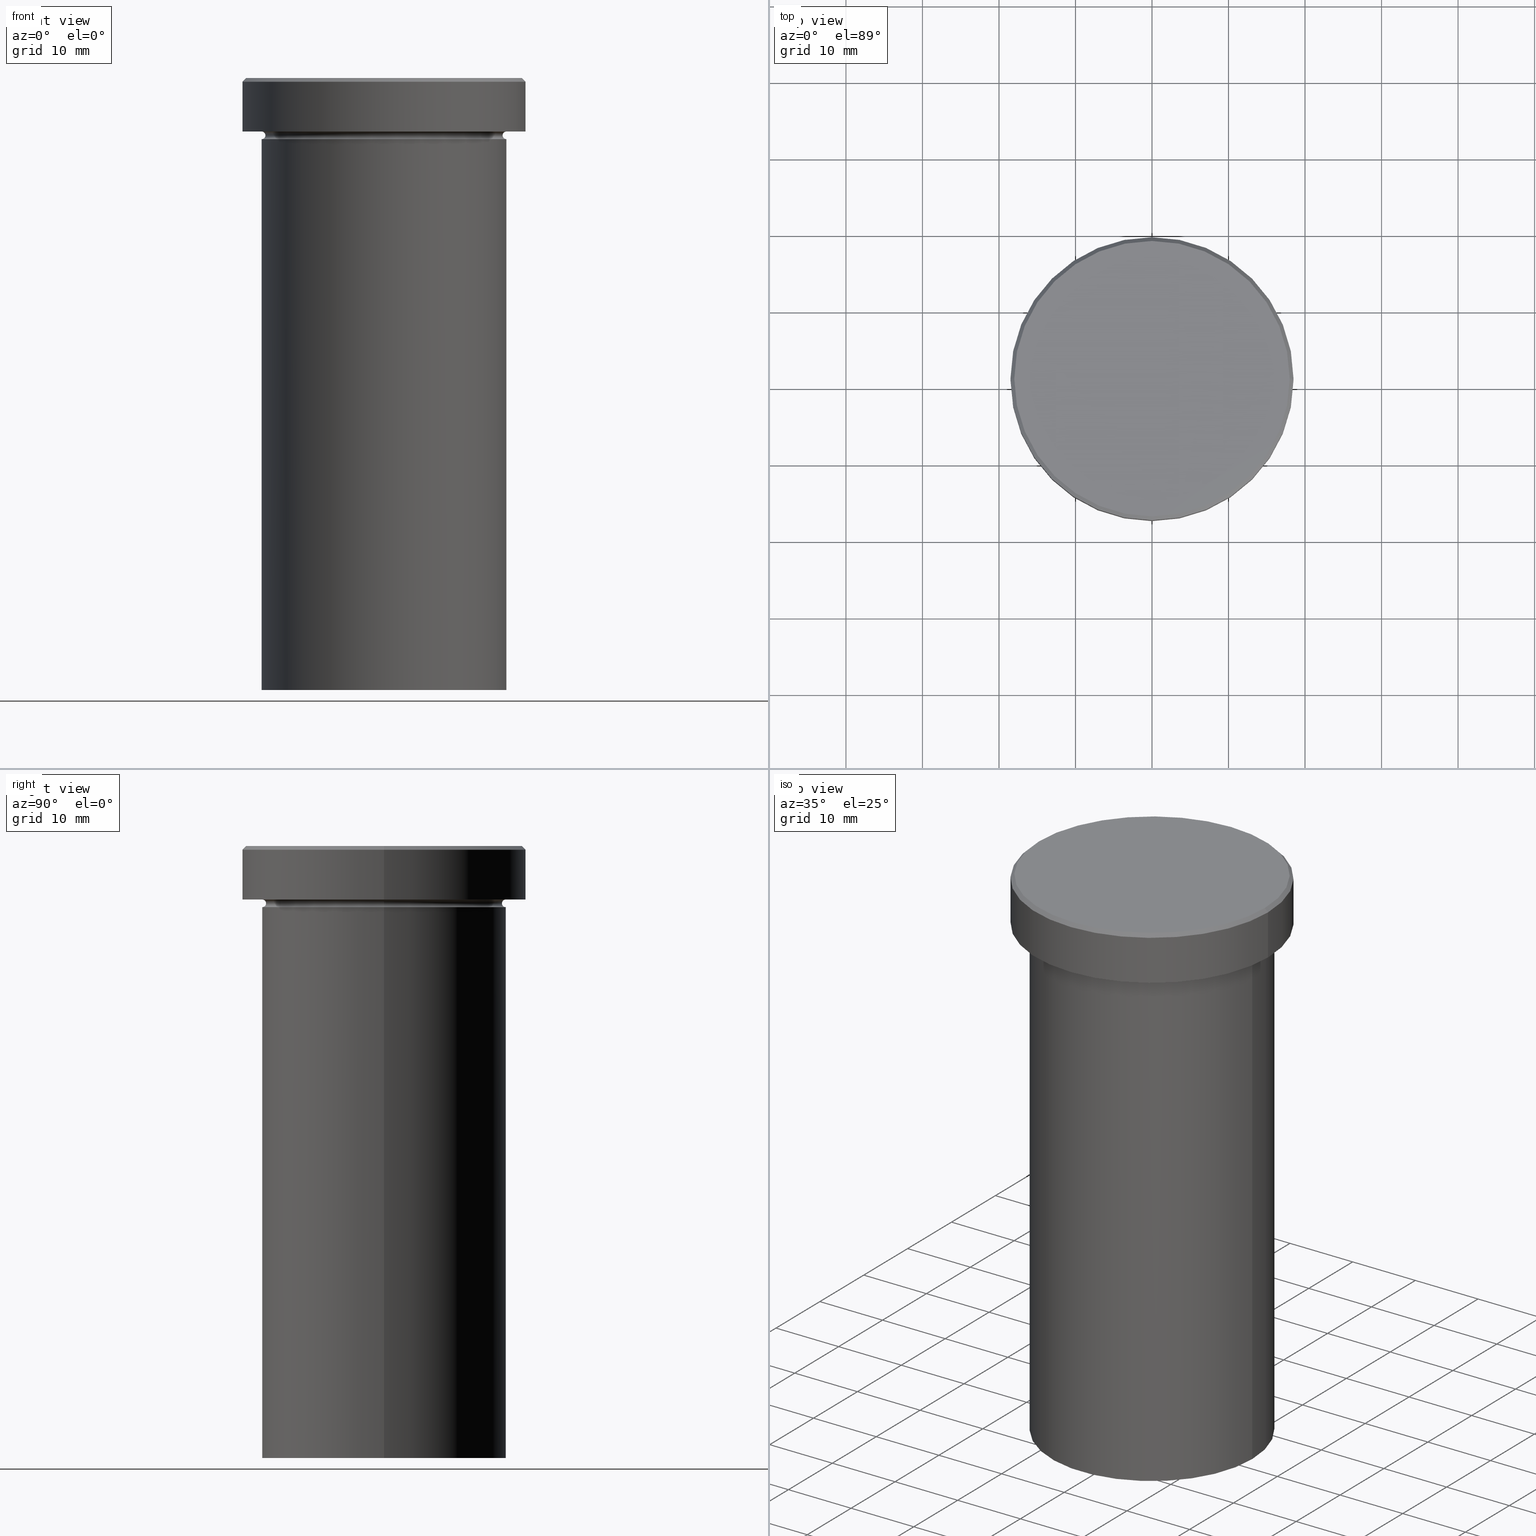
[diagram: canonical four-view strip — front | top / right | iso, engineering-drawing reading convention]
A machine part, canonical four-view strip (front | top / right | iso — engineering-drawing reading convention). The complete STEP part file that produces these views, byte-faithful:
ISO-10303-21;
HEADER;
FILE_DESCRIPTION (( 'STEP AP203' ),
    '1' );
FILE_NAME ('6285.STEP',
    '2024-01-02T19:14:12',
    ( '' ),
    ( '' ),
    'SwSTEP 2.0',
    'SolidWorks 2019',
    '' );
FILE_SCHEMA (( 'CONFIG_CONTROL_DESIGN' ));
ENDSEC;

DATA;
#1 = AXIS2_PLACEMENT_3D ( 'NONE', #48, #394, #180 ) ;
#2 = AXIS2_PLACEMENT_3D ( 'NONE', #370, #89, #249 ) ;
#3 = EDGE_LOOP ( 'NONE', ( #107, #36, #217, #155 ) ) ;
#4 = COORDINATED_UNIVERSAL_TIME_OFFSET ( 1, 0, .AHEAD. ) ;
#5 = CARTESIAN_POINT ( 'NONE',  ( 0.000000000000000000, 0.000000000000000000, -7.500000000000000000 ) ) ;
#6 = PERSON_AND_ORGANIZATION ( #95, #114 ) ;
#7 = DIRECTION ( 'NONE',  ( 1.000000000000000000, 0.000000000000000000, 0.000000000000000000 ) ) ;
#8 = EDGE_CURVE ( 'NONE', #279, #90, #46, .T. ) ;
#9 = CIRCLE ( 'NONE', #261, 0.5000000000000004441 ) ;
#10 = AXIS2_PLACEMENT_3D ( 'NONE', #66, #149, #244 ) ;
#11 = DIRECTION ( 'NONE',  ( 1.000000000000000000, 0.000000000000000000, 0.000000000000000000 ) ) ;
#12 = ADVANCED_FACE ( 'NONE', ( #43 ), #74, .T. ) ;
#13 = LINE ( 'NONE', #390, #153 ) ;
#14 = PLANE ( 'NONE',  #1 ) ;
#15 = CONICAL_SURFACE ( 'NONE', #241, 17.99999999999998934, 0.7853981633974380649 ) ;
#16 = CARTESIAN_POINT ( 'NONE',  ( 0.000000000000000000, 0.000000000000000000, -6.999999999999999112 ) ) ;
#17 = DIRECTION ( 'NONE',  ( 1.000000000000000000, 0.000000000000000000, 0.000000000000000000 ) ) ;
#18 = CARTESIAN_POINT ( 'NONE',  ( 0.000000000000000000, 0.000000000000000000, -6.999999999999999112 ) ) ;
#19 = CARTESIAN_POINT ( 'NONE',  ( 0.000000000000000000, 0.000000000000000000, -80.00000000000000000 ) ) ;
#20 = AXIS2_PLACEMENT_3D ( 'NONE', #221, #62, #188 ) ;
#21 = DIRECTION ( 'NONE',  ( -1.000000000000000000, 0.000000000000000000, 0.000000000000000000 ) ) ;
#22 = CARTESIAN_POINT ( 'NONE',  ( 16.00000000000000000, 0.000000000000000000, 0.000000000000000000 ) ) ;
#23 = ORIENTED_EDGE ( 'NONE', *, *, #229, .T. ) ;
#24 = EDGE_CURVE ( 'NONE', #26, #283, #271, .T. ) ;
#25 = DIRECTION ( 'NONE',  ( 0.000000000000000000, 0.000000000000000000, -1.000000000000000000 ) ) ;
#26 = VERTEX_POINT ( 'NONE', #200 ) ;
#27 = ADVANCED_FACE ( 'NONE', ( #77, #233 ), #224, .T. ) ;
#28 = CIRCLE ( 'NONE', #103, 16.00000000000000000 ) ;
#29 = TOROIDAL_SURFACE ( 'NONE', #10, 16.00000000000000000, 0.5000000000000000000 ) ;
#30 = CC_DESIGN_APPROVAL ( #123, ( #362 ) ) ;
#31 = DIRECTION ( 'NONE',  ( -0.000000000000000000, -0.000000000000000000, 1.000000000000000000 ) ) ;
#32 = ORIENTED_EDGE ( 'NONE', *, *, #50, .T. ) ;
#33 = APPROVAL ( #285, 'NEUR�EN�' ) ;
#34 = EDGE_LOOP ( 'NONE', ( #343, #405, #262, #67 ) ) ;
#35 = CALENDAR_DATE ( 2024, 2, 1 ) ;
#36 = ORIENTED_EDGE ( 'NONE', *, *, #125, .T. ) ;
#37 = APPLICATION_CONTEXT ( 'configuration controlled 3d designs of mechanical parts and assemblies' ) ;
#38 = AXIS2_PLACEMENT_3D ( 'NONE', #108, #354, #268 ) ;
#39 = CIRCLE ( 'NONE', #242, 15.50000000000000000 ) ;
#40 = APPLICATION_PROTOCOL_DEFINITION ( 'international standard', 'config_control_design', 1994, #37 ) ;
#41 = CARTESIAN_POINT ( 'NONE',  ( 0.000000000000000000, 0.000000000000000000, -80.00000000000000000 ) ) ;
#42 = APPLICATION_PROTOCOL_DEFINITION ( 'international standard', 'config_control_design', 1994, #225 ) ;
#43 = FACE_OUTER_BOUND ( 'NONE', #124, .T. ) ;
#44 =( NAMED_UNIT ( * ) PLANE_ANGLE_UNIT ( ) SI_UNIT ( $, .RADIAN. ) );
#45 = ORIENTED_EDGE ( 'NONE', *, *, #24, .F. ) ;
#46 = CIRCLE ( 'NONE', #168, 18.50000000000000000 ) ;
#47 = ORIENTED_EDGE ( 'NONE', *, *, #125, .F. ) ;
#48 = CARTESIAN_POINT ( 'NONE',  ( 0.000000000000000000, 0.000000000000000000, 0.000000000000000000 ) ) ;
#49 = CC_DESIGN_DATE_AND_TIME_ASSIGNMENT ( #289, #104, ( #130 ) ) ;
#50 = EDGE_CURVE ( 'NONE', #157, #59, #371, .T. ) ;
#51 = CARTESIAN_POINT ( 'NONE',  ( -15.50000000000000000, 1.928818708657081344E-15, -7.500000000000000000 ) ) ;
#52 = EDGE_CURVE ( 'NONE', #97, #381, #391, .T. ) ;
#53 = DIRECTION ( 'NONE',  ( -0.000000000000000000, -0.000000000000000000, 1.000000000000000000 ) ) ;
#54 = LOCAL_TIME ( 20, 14, 12.00000000000000000, #317 ) ;
#55 = PLANE ( 'NONE',  #308 ) ;
#56 = EDGE_CURVE ( 'NONE', #118, #245, #383, .T. ) ;
#57 = CARTESIAN_POINT ( 'NONE',  ( -16.00000000000000000, 1.959434878635765131E-15, 0.000000000000000000 ) ) ;
#58 = AXIS2_PLACEMENT_3D ( 'NONE', #99, #321, #11 ) ;
#59 = VERTEX_POINT ( 'NONE', #270 ) ;
#60 = DIRECTION ( 'NONE',  ( -0.000000000000000000, -0.000000000000000000, 1.000000000000000000 ) ) ;
#61 = ADVANCED_FACE ( 'NONE', ( #396 ), #382, .F. ) ;
#62 = DIRECTION ( 'NONE',  ( -0.000000000000000000, -0.000000000000000000, 1.000000000000000000 ) ) ;
#63 = FACE_OUTER_BOUND ( 'NONE', #171, .T. ) ;
#64 = ORIENTED_EDGE ( 'NONE', *, *, #133, .T. ) ;
#65 = CIRCLE ( 'NONE', #300, 0.5000000000000004441 ) ;
#66 = CARTESIAN_POINT ( 'NONE',  ( 0.000000000000000000, 0.000000000000000000, -7.500000000000000000 ) ) ;
#67 = ORIENTED_EDGE ( 'NONE', *, *, #102, .F. ) ;
#68 = COORDINATED_UNIVERSAL_TIME_OFFSET ( 1, 0, .AHEAD. ) ;
#69 = ORIENTED_EDGE ( 'NONE', *, *, #50, .F. ) ;
#70 = PERSON_AND_ORGANIZATION_ROLE ( 'design_supplier' ) ;
#71 = CARTESIAN_POINT ( 'NONE',  ( 0.000000000000000000, 18.50000000000000000, -6.999999999999999112 ) ) ;
#72 =( GEOMETRIC_REPRESENTATION_CONTEXT ( 3 ) GLOBAL_UNCERTAINTY_ASSIGNED_CONTEXT ( ( #280 ) ) GLOBAL_UNIT_ASSIGNED_CONTEXT ( ( #212, #44, #192 ) ) REPRESENTATION_CONTEXT ( 'NONE', 'WORKASPACE' ) );
#73 = PERSON_AND_ORGANIZATION ( #95, #114 ) ;
#74 = CYLINDRICAL_SURFACE ( 'NONE', #58, 18.50000000000000000 ) ;
#75 = PERSON_AND_ORGANIZATION ( #95, #114 ) ;
#76 = DIRECTION ( 'NONE',  ( 1.000000000000000000, 0.000000000000000000, 0.000000000000000000 ) ) ;
#77 = FACE_BOUND ( 'NONE', #293, .T. ) ;
#78 = CIRCLE ( 'NONE', #208, 18.50000000000000000 ) ;
#79 = EDGE_CURVE ( 'NONE', #59, #283, #82, .T. ) ;
#80 = DIRECTION ( 'NONE',  ( -1.000000000000000000, 0.000000000000000000, 0.000000000000000000 ) ) ;
#81 = CARTESIAN_POINT ( 'NONE',  ( -17.99999999999998934, 0.000000000000000000, 0.000000000000000000 ) ) ;
#82 = LINE ( 'NONE', #57, #201 ) ;
#83 = TOROIDAL_SURFACE ( 'NONE', #297, 16.00000000000000000, 0.5000000000000000000 ) ;
#84 = AXIS2_PLACEMENT_3D ( 'NONE', #400, #216, #92 ) ;
#85 = DIRECTION ( 'NONE',  ( -0.000000000000000000, -0.000000000000000000, 1.000000000000000000 ) ) ;
#86 = EDGE_CURVE ( 'NONE', #279, #381, #332, .T. ) ;
#87 = CARTESIAN_POINT ( 'NONE',  ( 0.000000000000000000, 0.000000000000000000, 0.000000000000000000 ) ) ;
#88 = CARTESIAN_POINT ( 'NONE',  ( 0.000000000000000000, 0.000000000000000000, 0.000000000000000000 ) ) ;
#89 = DIRECTION ( 'NONE',  ( -0.000000000000000000, -0.000000000000000000, 1.000000000000000000 ) ) ;
#90 = VERTEX_POINT ( 'NONE', #239 ) ;
#91 = DIRECTION ( 'NONE',  ( 1.000000000000000000, 0.000000000000000000, 0.000000000000000000 ) ) ;
#92 = DIRECTION ( 'NONE',  ( -1.000000000000000000, 0.000000000000000000, 0.000000000000000000 ) ) ;
#93 = ORIENTED_EDGE ( 'NONE', *, *, #309, .F. ) ;
#94 = VECTOR ( 'NONE', #85, 1000.000000000000000 ) ;
#95 = PERSON ( 'NEUR�EN�', 'NEUR�EN�', 'NEUR�EN�', ('NEUR�EN�'), ('NEUR�EN�'), ('NEUR�EN�') ) ;
#96 = APPROVAL_ROLE ( '' ) ;
#97 = VERTEX_POINT ( 'NONE', #240 ) ;
#98 = APPROVAL_ROLE ( '' ) ;
#99 = CARTESIAN_POINT ( 'NONE',  ( 0.000000000000000000, 0.000000000000000000, 0.000000000000000000 ) ) ;
#100 = APPROVAL_DATE_TIME ( #162, #33 ) ;
#101 = ORIENTED_EDGE ( 'NONE', *, *, #274, .F. ) ;
#102 = EDGE_CURVE ( 'NONE', #283, #26, #28, .T. ) ;
#103 = AXIS2_PLACEMENT_3D ( 'NONE', #142, #111, #145 ) ;
#104 = DATE_TIME_ROLE ( 'classification_date' ) ;
#105 = ORIENTED_EDGE ( 'NONE', *, *, #8, .F. ) ;
#106 = PERSON_AND_ORGANIZATION_ROLE ( 'creator' ) ;
#107 = ORIENTED_EDGE ( 'NONE', *, *, #191, .F. ) ;
#108 = CARTESIAN_POINT ( 'NONE',  ( 0.000000000000000000, 0.000000000000000000, -7.500000000000000000 ) ) ;
#109 = CIRCLE ( 'NONE', #143, 0.5000000000000004441 ) ;
#110 = DIRECTION ( 'NONE',  ( -0.000000000000000000, -0.000000000000000000, 1.000000000000000000 ) ) ;
#111 = DIRECTION ( 'NONE',  ( -0.000000000000000000, -0.000000000000000000, 1.000000000000000000 ) ) ;
#112 = DIRECTION ( 'NONE',  ( 0.000000000000000000, 0.000000000000000000, -1.000000000000000000 ) ) ;
#113 = EDGE_CURVE ( 'NONE', #90, #279, #78, .T. ) ;
#114 = ORGANIZATION ( 'NEUR�EN�', 'NEUR�EN�', '' ) ;
#115 = CARTESIAN_POINT ( 'NONE',  ( -16.00000000000000000, 0.000000000000000000, -7.500000000000000000 ) ) ;
#116 = DIRECTION ( 'NONE',  ( 1.224646799147353207E-16, 1.000000000000000000, 0.000000000000000000 ) ) ;
#117 = CARTESIAN_POINT ( 'NONE',  ( -16.00000000000000000, 0.000000000000000000, -6.999999999999999112 ) ) ;
#118 = VERTEX_POINT ( 'NONE', #237 ) ;
#119 = DESIGN_CONTEXT ( 'detailed design', #37, 'design' ) ;
#120 = DIRECTION ( 'NONE',  ( 1.000000000000000000, 0.000000000000000000, 0.000000000000000000 ) ) ;
#121 = AXIS2_PLACEMENT_3D ( 'NONE', #398, #31, #278 ) ;
#122 = CARTESIAN_POINT ( 'NONE',  ( 0.000000000000000000, 0.000000000000000000, -6.999999999999999112 ) ) ;
#123 = APPROVAL ( #314, 'NEUR�EN�' ) ;
#124 = EDGE_LOOP ( 'NONE', ( #199, #128, #184, #292 ) ) ;
#125 = EDGE_CURVE ( 'NONE', #353, #97, #13, .T. ) ;
#126 = CYLINDRICAL_SURFACE ( 'NONE', #20, 18.50000000000000000 ) ;
#127 = PERSON_AND_ORGANIZATION ( #95, #114 ) ;
#128 = ORIENTED_EDGE ( 'NONE', *, *, #8, .T. ) ;
#129 = VECTOR ( 'NONE', #305, 1000.000000000000000 ) ;
#130 = SECURITY_CLASSIFICATION ( '', '', #230 ) ;
#131 = CARTESIAN_POINT ( 'NONE',  ( 0.000000000000000000, 0.000000000000000000, -6.999999999999999112 ) ) ;
#132 = CALENDAR_DATE ( 2024, 2, 1 ) ;
#133 = EDGE_CURVE ( 'NONE', #276, #323, #267, .T. ) ;
#134 = ORIENTED_EDGE ( 'NONE', *, *, #274, .T. ) ;
#135 = APPROVAL_ROLE ( '' ) ;
#136 = DIRECTION ( 'NONE',  ( 0.000000000000000000, 0.000000000000000000, -1.000000000000000000 ) ) ;
#137 = AXIS2_PLACEMENT_3D ( 'NONE', #404, #275, #273 ) ;
#138 = LOCAL_TIME ( 20, 14, 12.00000000000000000, #345 ) ;
#139 = CALENDAR_DATE ( 2024, 2, 1 ) ;
#140 = DIRECTION ( 'NONE',  ( -0.000000000000000000, -0.000000000000000000, 1.000000000000000000 ) ) ;
#141 = CC_DESIGN_PERSON_AND_ORGANIZATION_ASSIGNMENT ( #223, #259, ( #362 ) ) ;
#142 = CARTESIAN_POINT ( 'NONE',  ( 0.000000000000000000, 0.000000000000000000, -8.000000000000000000 ) ) ;
#143 = AXIS2_PLACEMENT_3D ( 'NONE', #210, #203, #331 ) ;
#144 = DIRECTION ( 'NONE',  ( -1.000000000000000000, 0.000000000000000000, 0.000000000000000000 ) ) ;
#145 = DIRECTION ( 'NONE',  ( 1.000000000000000000, 0.000000000000000000, 0.000000000000000000 ) ) ;
#146 = ADVANCED_BREP_SHAPE_REPRESENTATION ( '6285', ( #170, #385 ), #72 ) ;
#147 = FACE_OUTER_BOUND ( 'NONE', #34, .T. ) ;
#148 = AXIS2_PLACEMENT_3D ( 'NONE', #71, #195, #165 ) ;
#149 = DIRECTION ( 'NONE',  ( 0.000000000000000000, 0.000000000000000000, -1.000000000000000000 ) ) ;
#150 = CC_DESIGN_DATE_AND_TIME_ASSIGNMENT ( #194, #164, ( #362 ) ) ;
#151 = FACE_OUTER_BOUND ( 'NONE', #315, .T. ) ;
#152 = CARTESIAN_POINT ( 'NONE',  ( 16.00000000000000000, 1.959434878635765131E-15, -6.999999999999999112 ) ) ;
#153 = VECTOR ( 'NONE', #207, 1000.000000000000114 ) ;
#154 = DIRECTION ( 'NONE',  ( -0.000000000000000000, -0.000000000000000000, 1.000000000000000000 ) ) ;
#155 = ORIENTED_EDGE ( 'NONE', *, *, #238, .F. ) ;
#156 = CARTESIAN_POINT ( 'NONE',  ( 0.000000000000000000, 0.000000000000000000, 0.000000000000000000 ) ) ;
#157 = VERTEX_POINT ( 'NONE', #395 ) ;
#158 = PERSON_AND_ORGANIZATION ( #95, #114 ) ;
#159 = ORIENTED_EDGE ( 'NONE', *, *, #173, .T. ) ;
#160 = AXIS2_PLACEMENT_3D ( 'NONE', #41, #163, #7 ) ;
#161 = LOCAL_TIME ( 20, 14, 12.00000000000000000, #4 ) ;
#162 = DATE_AND_TIME ( #347, #169 ) ;
#163 = DIRECTION ( 'NONE',  ( -0.000000000000000000, -0.000000000000000000, 1.000000000000000000 ) ) ;
#164 = DATE_TIME_ROLE ( 'creation_date' ) ;
#165 = DIRECTION ( 'NONE',  ( -1.000000000000000000, 0.000000000000000000, -0.000000000000000000 ) ) ;
#166 = CC_DESIGN_PERSON_AND_ORGANIZATION_ASSIGNMENT ( #75, #226, ( #130 ) ) ;
#167 = EDGE_LOOP ( 'NONE', ( #69, #318 ) ) ;
#168 = AXIS2_PLACEMENT_3D ( 'NONE', #131, #258, #378 ) ;
#169 = LOCAL_TIME ( 20, 14, 12.00000000000000000, #380 ) ;
#170 = MANIFOLD_SOLID_BREP ( 'Zkosen�1', #340 ) ;
#171 = EDGE_LOOP ( 'NONE', ( #32, #346, #45, #363 ) ) ;
#172 = FACE_OUTER_BOUND ( 'NONE', #307, .T. ) ;
#173 = EDGE_CURVE ( 'NONE', #245, #323, #9, .T. ) ;
#174 = FACE_OUTER_BOUND ( 'NONE', #3, .T. ) ;
#175 = CC_DESIGN_SECURITY_CLASSIFICATION ( #130, ( #228 ) ) ;
#176 = ADVANCED_FACE ( 'NONE', ( #172 ), #14, .T. ) ;
#177 = FACE_OUTER_BOUND ( 'NONE', #182, .T. ) ;
#178 = DIRECTION ( 'NONE',  ( 0.000000000000000000, 0.000000000000000000, -1.000000000000000000 ) ) ;
#179 = CC_DESIGN_PERSON_AND_ORGANIZATION_ASSIGNMENT ( #384, #106, ( #228 ) ) ;
#180 = DIRECTION ( 'NONE',  ( 1.000000000000000000, 0.000000000000000000, 0.000000000000000000 ) ) ;
#181 = AXIS2_PLACEMENT_3D ( 'NONE', #122, #60, #21 ) ;
#182 = EDGE_LOOP ( 'NONE', ( #213, #134, #93, #313 ) ) ;
#183 = FACE_OUTER_BOUND ( 'NONE', #326, .T. ) ;
#184 = ORIENTED_EDGE ( 'NONE', *, *, #306, .T. ) ;
#185 = FACE_OUTER_BOUND ( 'NONE', #375, .T. ) ;
#186 = VERTEX_POINT ( 'NONE', #356 ) ;
#187 = AXIS2_PLACEMENT_3D ( 'NONE', #16, #269, #144 ) ;
#188 = DIRECTION ( 'NONE',  ( 1.000000000000000000, 0.000000000000000000, 0.000000000000000000 ) ) ;
#189 = EDGE_LOOP ( 'NONE', ( #252, #290, #23, #339 ) ) ;
#190 = CALENDAR_DATE ( 2024, 2, 1 ) ;
#191 = EDGE_CURVE ( 'NONE', #353, #186, #196, .T. ) ;
#192 =( NAMED_UNIT ( * ) SI_UNIT ( $, .STERADIAN. ) SOLID_ANGLE_UNIT ( ) );
#193 = ORIENTED_EDGE ( 'NONE', *, *, #113, .F. ) ;
#194 = DATE_AND_TIME ( #35, #248 ) ;
#195 = DIRECTION ( 'NONE',  ( 0.000000000000000000, 0.000000000000000000, -1.000000000000000000 ) ) ;
#196 = CIRCLE ( 'NONE', #316, 17.99999999999998934 ) ;
#197 = CONICAL_SURFACE ( 'NONE', #84, 17.99999999999998934, 0.7853981633974380649 ) ;
#198 = ORIENTED_EDGE ( 'NONE', *, *, #86, .T. ) ;
#199 = ORIENTED_EDGE ( 'NONE', *, *, #86, .F. ) ;
#200 = CARTESIAN_POINT ( 'NONE',  ( 16.00000000000000000, 0.000000000000000000, -8.000000000000000000 ) ) ;
#201 = VECTOR ( 'NONE', #53, 1000.000000000000000 ) ;
#202 = AXIS2_PLACEMENT_3D ( 'NONE', #19, #406, #91 ) ;
#203 = DIRECTION ( 'NONE',  ( 0.000000000000000000, -1.000000000000000000, 0.000000000000000000 ) ) ;
#204 = DIRECTION ( 'NONE',  ( 1.000000000000000000, 0.000000000000000000, 0.000000000000000000 ) ) ;
#205 = PRODUCT_DEFINITION_SHAPE ( 'NONE', 'NONE',  #362 ) ;
#206 = ADVANCED_FACE ( 'NONE', ( #177 ), #83, .F. ) ;
#207 = DIRECTION ( 'NONE',  ( 0.7071067811865402453, 8.659560562354844111E-17, -0.7071067811865549002 ) ) ;
#208 = AXIS2_PLACEMENT_3D ( 'NONE', #18, #327, #17 ) ;
#209 = CC_DESIGN_APPROVAL ( #33, ( #228 ) ) ;
#210 = CARTESIAN_POINT ( 'NONE',  ( 16.00000000000000000, 0.000000000000000000, -7.500000000000000000 ) ) ;
#211 = CARTESIAN_POINT ( 'NONE',  ( 0.000000000000000000, 0.000000000000000000, -7.500000000000000000 ) ) ;
#212 =( LENGTH_UNIT ( ) NAMED_UNIT ( * ) SI_UNIT ( .MILLI., .METRE. ) );
#213 = ORIENTED_EDGE ( 'NONE', *, *, #387, .T. ) ;
#214 = AXIS2_PLACEMENT_3D ( 'NONE', #5, #352, #76 ) ;
#215 = CC_DESIGN_APPROVAL ( #403, ( #130 ) ) ;
#216 = DIRECTION ( 'NONE',  ( 0.000000000000000000, 0.000000000000000000, -1.000000000000000000 ) ) ;
#217 = ORIENTED_EDGE ( 'NONE', *, *, #367, .F. ) ;
#218 = DIRECTION ( 'NONE',  ( 1.000000000000000000, 0.000000000000000000, 0.000000000000000000 ) ) ;
#219 = LINE ( 'NONE', #302, #129 ) ;
#220 = ORIENTED_EDGE ( 'NONE', *, *, #309, .T. ) ;
#221 = CARTESIAN_POINT ( 'NONE',  ( 0.000000000000000000, 0.000000000000000000, 0.000000000000000000 ) ) ;
#222 = ORIENTED_EDGE ( 'NONE', *, *, #387, .F. ) ;
#223 = PERSON_AND_ORGANIZATION ( #95, #114 ) ;
#224 = PLANE ( 'NONE',  #148 ) ;
#225 = APPLICATION_CONTEXT ( 'configuration controlled 3d designs of mechanical parts and assemblies' ) ;
#226 = PERSON_AND_ORGANIZATION_ROLE ( 'classification_officer' ) ;
#227 = ORIENTED_EDGE ( 'NONE', *, *, #229, .F. ) ;
#228 = PRODUCT_DEFINITION_FORMATION_WITH_SPECIFIED_SOURCE ( 'LIBOVOLN�', '', #294, .NOT_KNOWN. ) ;
#229 = EDGE_CURVE ( 'NONE', #118, #26, #109, .T. ) ;
#230 = SECURITY_CLASSIFICATION_LEVEL ( 'unclassified' ) ;
#231 = CARTESIAN_POINT ( 'NONE',  ( 0.000000000000000000, 0.000000000000000000, -8.000000000000000000 ) ) ;
#232 = ADVANCED_FACE ( 'NONE', ( #266 ), #55, .T. ) ;
#233 = FACE_OUTER_BOUND ( 'NONE', #350, .T. ) ;
#234 = DIRECTION ( 'NONE',  ( -0.000000000000000000, -1.000000000000000000, -0.000000000000000000 ) ) ;
#235 = ADVANCED_FACE ( 'NONE', ( #147 ), #361, .T. ) ;
#236 = TOROIDAL_SURFACE ( 'NONE', #121, 16.00000000000000000, 0.5000000000000000000 ) ;
#237 = CARTESIAN_POINT ( 'NONE',  ( 15.50000000000000000, 0.000000000000000000, -7.500000000000000000 ) ) ;
#238 = EDGE_CURVE ( 'NONE', #186, #381, #355, .T. ) ;
#239 = CARTESIAN_POINT ( 'NONE',  ( 18.50000000000000000, 0.000000000000000000, -6.999999999999999112 ) ) ;
#240 = CARTESIAN_POINT ( 'NONE',  ( 18.50000000000000000, 0.000000000000000000, -0.5000000000000213163 ) ) ;
#241 = AXIS2_PLACEMENT_3D ( 'NONE', #296, #25, #303 ) ;
#242 = AXIS2_PLACEMENT_3D ( 'NONE', #366, #154, #218 ) ;
#243 = DIRECTION ( 'NONE',  ( 0.000000000000000000, 0.000000000000000000, -1.000000000000000000 ) ) ;
#244 = DIRECTION ( 'NONE',  ( -1.000000000000000000, 0.000000000000000000, 0.000000000000000000 ) ) ;
#245 = VERTEX_POINT ( 'NONE', #51 ) ;
#246 = DIRECTION ( 'NONE',  ( 1.000000000000000000, 0.000000000000000000, 0.000000000000000000 ) ) ;
#247 = CIRCLE ( 'NONE', #181, 16.00000000000000000 ) ;
#248 = LOCAL_TIME ( 20, 14, 12.00000000000000000, #68 ) ;
#249 = DIRECTION ( 'NONE',  ( 1.000000000000000000, 0.000000000000000000, 0.000000000000000000 ) ) ;
#250 = ADVANCED_FACE ( 'NONE', ( #174 ), #15, .T. ) ;
#251 = CYLINDRICAL_SURFACE ( 'NONE', #277, 16.00000000000000000 ) ;
#252 = ORIENTED_EDGE ( 'NONE', *, *, #301, .F. ) ;
#253 = EDGE_CURVE ( 'NONE', #157, #26, #272, .T. ) ;
#254 = VECTOR ( 'NONE', #299, 1000.000000000000000 ) ;
#255 = APPROVAL_DATE_TIME ( #388, #123 ) ;
#256 = ORIENTED_EDGE ( 'NONE', *, *, #113, .T. ) ;
#257 = DIRECTION ( 'NONE',  ( 0.000000000000000000, 0.000000000000000000, 1.000000000000000000 ) ) ;
#258 = DIRECTION ( 'NONE',  ( -0.000000000000000000, -0.000000000000000000, 1.000000000000000000 ) ) ;
#259 = PERSON_AND_ORGANIZATION_ROLE ( 'creator' ) ;
#260 = ORIENTED_EDGE ( 'NONE', *, *, #376, .F. ) ;
#261 = AXIS2_PLACEMENT_3D ( 'NONE', #115, #234, #112 ) ;
#262 = ORIENTED_EDGE ( 'NONE', *, *, #253, .T. ) ;
#263 = APPROVAL_PERSON_ORGANIZATION ( #377, #123, #96 ) ;
#264 = DIRECTION ( 'NONE',  ( 1.000000000000000000, 0.000000000000000000, 0.000000000000000000 ) ) ;
#265 = CARTESIAN_POINT ( 'NONE',  ( -18.50000000000000000, 2.265596578422603396E-15, 0.000000000000000000 ) ) ;
#266 = FACE_OUTER_BOUND ( 'NONE', #167, .T. ) ;
#267 = CIRCLE ( 'NONE', #187, 16.00000000000000000 ) ;
#268 = DIRECTION ( 'NONE',  ( 1.000000000000000000, 0.000000000000000000, 0.000000000000000000 ) ) ;
#269 = DIRECTION ( 'NONE',  ( -0.000000000000000000, -0.000000000000000000, 1.000000000000000000 ) ) ;
#270 = CARTESIAN_POINT ( 'NONE',  ( -16.00000000000000000, 1.959434878635765131E-15, -80.00000000000000000 ) ) ;
#271 = CIRCLE ( 'NONE', #365, 16.00000000000000000 ) ;
#272 = LINE ( 'NONE', #22, #254 ) ;
#273 = DIRECTION ( 'NONE',  ( -1.000000000000000000, -1.224646799147349509E-16, 0.000000000000000000 ) ) ;
#274 = EDGE_CURVE ( 'NONE', #118, #276, #401, .T. ) ;
#275 = DIRECTION ( 'NONE',  ( -1.224646799147353207E-16, 1.000000000000000000, 0.000000000000000000 ) ) ;
#276 = VERTEX_POINT ( 'NONE', #152 ) ;
#277 = AXIS2_PLACEMENT_3D ( 'NONE', #88, #337, #246 ) ;
#278 = DIRECTION ( 'NONE',  ( 1.000000000000000000, 0.000000000000000000, 0.000000000000000000 ) ) ;
#279 = VERTEX_POINT ( 'NONE', #397 ) ;
#280 = UNCERTAINTY_MEASURE_WITH_UNIT (LENGTH_MEASURE( 1.000000000000000082E-05 ), #212, 'distance_accuracy_value', 'NONE');
#281 = CARTESIAN_POINT ( 'NONE',  ( 0.000000000000000000, 0.000000000000000000, -0.5000000000000213163 ) ) ;
#282 = ORIENTED_EDGE ( 'NONE', *, *, #52, .F. ) ;
#283 = VERTEX_POINT ( 'NONE', #333 ) ;
#284 = AXIS2_PLACEMENT_3D ( 'NONE', #288, #136, #264 ) ;
#285 = APPROVAL_STATUS ( 'not_yet_approved' ) ;
#286 = ORIENTED_EDGE ( 'NONE', *, *, #306, .F. ) ;
#287 = APPROVAL_STATUS ( 'not_yet_approved' ) ;
#288 = CARTESIAN_POINT ( 'NONE',  ( 0.000000000000000000, 0.000000000000000000, -0.5000000000000213163 ) ) ;
#289 = DATE_AND_TIME ( #190, #54 ) ;
#290 = ORIENTED_EDGE ( 'NONE', *, *, #56, .F. ) ;
#291 = DIRECTION ( 'NONE',  ( 1.000000000000000000, 0.000000000000000000, 0.000000000000000000 ) ) ;
#292 = ORIENTED_EDGE ( 'NONE', *, *, #52, .T. ) ;
#293 = EDGE_LOOP ( 'NONE', ( #220, #64 ) ) ;
#294 = PRODUCT ( '6285', '6285', '', ( #320 ) ) ;
#295 = CARTESIAN_POINT ( 'NONE',  ( 0.000000000000000000, 0.000000000000000000, 0.000000000000000000 ) ) ;
#296 = CARTESIAN_POINT ( 'NONE',  ( 0.000000000000000000, 0.000000000000000000, 0.000000000000000000 ) ) ;
#297 = AXIS2_PLACEMENT_3D ( 'NONE', #211, #243, #80 ) ;
#298 = DIRECTION ( 'NONE',  ( -1.000000000000000000, 0.000000000000000000, -0.000000000000000000 ) ) ;
#299 = DIRECTION ( 'NONE',  ( -0.000000000000000000, -0.000000000000000000, 1.000000000000000000 ) ) ;
#300 = AXIS2_PLACEMENT_3D ( 'NONE', #335, #116, #342 ) ;
#301 = EDGE_CURVE ( 'NONE', #245, #283, #65, .T. ) ;
#302 = CARTESIAN_POINT ( 'NONE',  ( 18.50000000000000000, 0.000000000000000000, 0.000000000000000000 ) ) ;
#303 = DIRECTION ( 'NONE',  ( -1.000000000000000000, 0.000000000000000000, 0.000000000000000000 ) ) ;
#304 = ORIENTED_EDGE ( 'NONE', *, *, #367, .T. ) ;
#305 = DIRECTION ( 'NONE',  ( -0.000000000000000000, -0.000000000000000000, 1.000000000000000000 ) ) ;
#306 = EDGE_CURVE ( 'NONE', #90, #97, #219, .T. ) ;
#307 = EDGE_LOOP ( 'NONE', ( #399, #408 ) ) ;
#308 = AXIS2_PLACEMENT_3D ( 'NONE', #392, #178, #298 ) ;
#309 = EDGE_CURVE ( 'NONE', #323, #276, #247, .T. ) ;
#310 = CIRCLE ( 'NONE', #202, 16.00000000000000000 ) ;
#311 = CARTESIAN_POINT ( 'NONE',  ( -18.50000000000000000, 2.265596578422603396E-15, -0.5000000000000213163 ) ) ;
#312 = ADVANCED_FACE ( 'NONE', ( #151 ), #236, .F. ) ;
#313 = ORIENTED_EDGE ( 'NONE', *, *, #173, .F. ) ;
#314 = APPROVAL_STATUS ( 'not_yet_approved' ) ;
#315 = EDGE_LOOP ( 'NONE', ( #222, #369, #407, #227 ) ) ;
#316 = AXIS2_PLACEMENT_3D ( 'NONE', #295, #358, #329 ) ;
#317 = COORDINATED_UNIVERSAL_TIME_OFFSET ( 1, 0, .AHEAD. ) ;
#318 = ORIENTED_EDGE ( 'NONE', *, *, #379, .F. ) ;
#319 = CC_DESIGN_PERSON_AND_ORGANIZATION_ASSIGNMENT ( #73, #70, ( #228 ) ) ;
#320 = MECHANICAL_CONTEXT ( 'NONE', #225, 'mechanical' ) ;
#321 = DIRECTION ( 'NONE',  ( -0.000000000000000000, -0.000000000000000000, 1.000000000000000000 ) ) ;
#322 = APPROVAL_DATE_TIME ( #351, #403 ) ;
#323 = VERTEX_POINT ( 'NONE', #117 ) ;
#324 = ADVANCED_FACE ( 'NONE', ( #63 ), #251, .T. ) ;
#325 = VECTOR ( 'NONE', #328, 1000.000000000000114 ) ;
#326 = EDGE_LOOP ( 'NONE', ( #256, #198, #304, #286 ) ) ;
#327 = DIRECTION ( 'NONE',  ( -0.000000000000000000, -0.000000000000000000, 1.000000000000000000 ) ) ;
#328 = DIRECTION ( 'NONE',  ( -0.7071067811865402453, 0.000000000000000000, -0.7071067811865549002 ) ) ;
#329 = DIRECTION ( 'NONE',  ( 1.000000000000000000, 0.000000000000000000, 0.000000000000000000 ) ) ;
#330 = CIRCLE ( 'NONE', #372, 18.50000000000000000 ) ;
#331 = DIRECTION ( 'NONE',  ( 0.000000000000000000, 0.000000000000000000, -1.000000000000000000 ) ) ;
#332 = LINE ( 'NONE', #265, #94 ) ;
#333 = CARTESIAN_POINT ( 'NONE',  ( -16.00000000000000000, 1.959434878635765131E-15, -8.000000000000000000 ) ) ;
#334 = ORIENTED_EDGE ( 'NONE', *, *, #133, .F. ) ;
#335 = CARTESIAN_POINT ( 'NONE',  ( -16.00000000000000000, 1.959434878635765131E-15, -7.500000000000000000 ) ) ;
#336 = EDGE_LOOP ( 'NONE', ( #47, #260, #386, #282 ) ) ;
#337 = DIRECTION ( 'NONE',  ( -0.000000000000000000, -0.000000000000000000, 1.000000000000000000 ) ) ;
#338 = DIRECTION ( 'NONE',  ( 0.000000000000000000, 0.000000000000000000, -1.000000000000000000 ) ) ;
#339 = ORIENTED_EDGE ( 'NONE', *, *, #24, .T. ) ;
#340 = CLOSED_SHELL ( 'NONE', ( #250, #206, #312, #324, #374, #232, #176, #12, #27, #235, #61, #393, #344 ) ) ;
#341 = APPROVAL_PERSON_ORGANIZATION ( #158, #33, #98 ) ;
#342 = DIRECTION ( 'NONE',  ( -1.000000000000000000, 1.224646799147349509E-16, 0.000000000000000000 ) ) ;
#343 = ORIENTED_EDGE ( 'NONE', *, *, #79, .F. ) ;
#344 = ADVANCED_FACE ( 'NONE', ( #368 ), #197, .T. ) ;
#345 = COORDINATED_UNIVERSAL_TIME_OFFSET ( 1, 0, .AHEAD. ) ;
#346 = ORIENTED_EDGE ( 'NONE', *, *, #79, .T. ) ;
#347 = CALENDAR_DATE ( 2024, 2, 1 ) ;
#348 = ORIENTED_EDGE ( 'NONE', *, *, #56, .T. ) ;
#349 = SHAPE_DEFINITION_REPRESENTATION ( #205, #146 ) ;
#350 = EDGE_LOOP ( 'NONE', ( #193, #105 ) ) ;
#351 = DATE_AND_TIME ( #132, #161 ) ;
#352 = DIRECTION ( 'NONE',  ( -0.000000000000000000, -0.000000000000000000, 1.000000000000000000 ) ) ;
#353 = VERTEX_POINT ( 'NONE', #364 ) ;
#354 = DIRECTION ( 'NONE',  ( -0.000000000000000000, -0.000000000000000000, 1.000000000000000000 ) ) ;
#355 = LINE ( 'NONE', #81, #325 ) ;
#356 = CARTESIAN_POINT ( 'NONE',  ( -17.99999999999998934, 0.000000000000000000, 0.000000000000000000 ) ) ;
#357 = CC_DESIGN_PERSON_AND_ORGANIZATION_ASSIGNMENT ( #127, #373, ( #294 ) ) ;
#358 = DIRECTION ( 'NONE',  ( -0.000000000000000000, -0.000000000000000000, 1.000000000000000000 ) ) ;
#359 = AXIS2_PLACEMENT_3D ( 'NONE', #87, #110, #204 ) ;
#360 = CIRCLE ( 'NONE', #2, 17.99999999999998934 ) ;
#361 = CYLINDRICAL_SURFACE ( 'NONE', #359, 16.00000000000000000 ) ;
#362 = PRODUCT_DEFINITION ( 'NEZN�M�', '', #228, #119 ) ;
#363 = ORIENTED_EDGE ( 'NONE', *, *, #253, .F. ) ;
#364 = CARTESIAN_POINT ( 'NONE',  ( 17.99999999999998934, 2.234980408443918820E-15, 0.000000000000000000 ) ) ;
#365 = AXIS2_PLACEMENT_3D ( 'NONE', #231, #140, #389 ) ;
#366 = CARTESIAN_POINT ( 'NONE',  ( 0.000000000000000000, 0.000000000000000000, -7.500000000000000000 ) ) ;
#367 = EDGE_CURVE ( 'NONE', #381, #97, #330, .T. ) ;
#368 = FACE_OUTER_BOUND ( 'NONE', #336, .T. ) ;
#369 = ORIENTED_EDGE ( 'NONE', *, *, #301, .T. ) ;
#370 = CARTESIAN_POINT ( 'NONE',  ( 0.000000000000000000, 0.000000000000000000, 0.000000000000000000 ) ) ;
#371 = CIRCLE ( 'NONE', #160, 16.00000000000000000 ) ;
#372 = AXIS2_PLACEMENT_3D ( 'NONE', #281, #338, #120 ) ;
#373 = PERSON_AND_ORGANIZATION_ROLE ( 'design_owner' ) ;
#374 = ADVANCED_FACE ( 'NONE', ( #183 ), #126, .T. ) ;
#375 = EDGE_LOOP ( 'NONE', ( #101, #348, #159, #334 ) ) ;
#376 = EDGE_CURVE ( 'NONE', #186, #353, #360, .T. ) ;
#377 = PERSON_AND_ORGANIZATION ( #95, #114 ) ;
#378 = DIRECTION ( 'NONE',  ( 1.000000000000000000, 0.000000000000000000, 0.000000000000000000 ) ) ;
#379 = EDGE_CURVE ( 'NONE', #59, #157, #310, .T. ) ;
#380 = COORDINATED_UNIVERSAL_TIME_OFFSET ( 1, 0, .AHEAD. ) ;
#381 = VERTEX_POINT ( 'NONE', #311 ) ;
#382 = TOROIDAL_SURFACE ( 'NONE', #38, 16.00000000000000000, 0.5000000000000000000 ) ;
#383 = CIRCLE ( 'NONE', #214, 15.50000000000000000 ) ;
#384 = PERSON_AND_ORGANIZATION ( #95, #114 ) ;
#385 = AXIS2_PLACEMENT_3D ( 'NONE', #156, #257, #291 ) ;
#386 = ORIENTED_EDGE ( 'NONE', *, *, #238, .T. ) ;
#387 = EDGE_CURVE ( 'NONE', #245, #118, #39, .T. ) ;
#388 = DATE_AND_TIME ( #139, #138 ) ;
#389 = DIRECTION ( 'NONE',  ( 1.000000000000000000, 0.000000000000000000, 0.000000000000000000 ) ) ;
#390 = CARTESIAN_POINT ( 'NONE',  ( 17.99999999999998934, 2.204364238465234244E-15, 0.000000000000000000 ) ) ;
#391 = CIRCLE ( 'NONE', #284, 18.50000000000000000 ) ;
#392 = CARTESIAN_POINT ( 'NONE',  ( 0.000000000000000000, 16.00000000000000000, -80.00000000000000000 ) ) ;
#393 = ADVANCED_FACE ( 'NONE', ( #185 ), #29, .F. ) ;
#394 = DIRECTION ( 'NONE',  ( 0.000000000000000000, -0.000000000000000000, 1.000000000000000000 ) ) ;
#395 = CARTESIAN_POINT ( 'NONE',  ( 16.00000000000000000, 0.000000000000000000, -80.00000000000000000 ) ) ;
#396 = FACE_OUTER_BOUND ( 'NONE', #189, .T. ) ;
#397 = CARTESIAN_POINT ( 'NONE',  ( -18.50000000000000000, 2.265596578422603396E-15, -6.999999999999999112 ) ) ;
#398 = CARTESIAN_POINT ( 'NONE',  ( 0.000000000000000000, 0.000000000000000000, -7.500000000000000000 ) ) ;
#399 = ORIENTED_EDGE ( 'NONE', *, *, #376, .T. ) ;
#400 = CARTESIAN_POINT ( 'NONE',  ( 0.000000000000000000, 0.000000000000000000, 0.000000000000000000 ) ) ;
#401 = CIRCLE ( 'NONE', #137, 0.5000000000000004441 ) ;
#402 = APPROVAL_PERSON_ORGANIZATION ( #6, #403, #135 ) ;
#403 = APPROVAL ( #287, 'NEUR�EN�' ) ;
#404 = CARTESIAN_POINT ( 'NONE',  ( 16.00000000000000000, 1.959434878635765131E-15, -7.500000000000000000 ) ) ;
#405 = ORIENTED_EDGE ( 'NONE', *, *, #379, .T. ) ;
#406 = DIRECTION ( 'NONE',  ( -0.000000000000000000, -0.000000000000000000, 1.000000000000000000 ) ) ;
#407 = ORIENTED_EDGE ( 'NONE', *, *, #102, .T. ) ;
#408 = ORIENTED_EDGE ( 'NONE', *, *, #191, .T. ) ;
#409 = PRODUCT_RELATED_PRODUCT_CATEGORY ( 'detail', '', ( #294 ) ) ;
ENDSEC;
END-ISO-10303-21;
